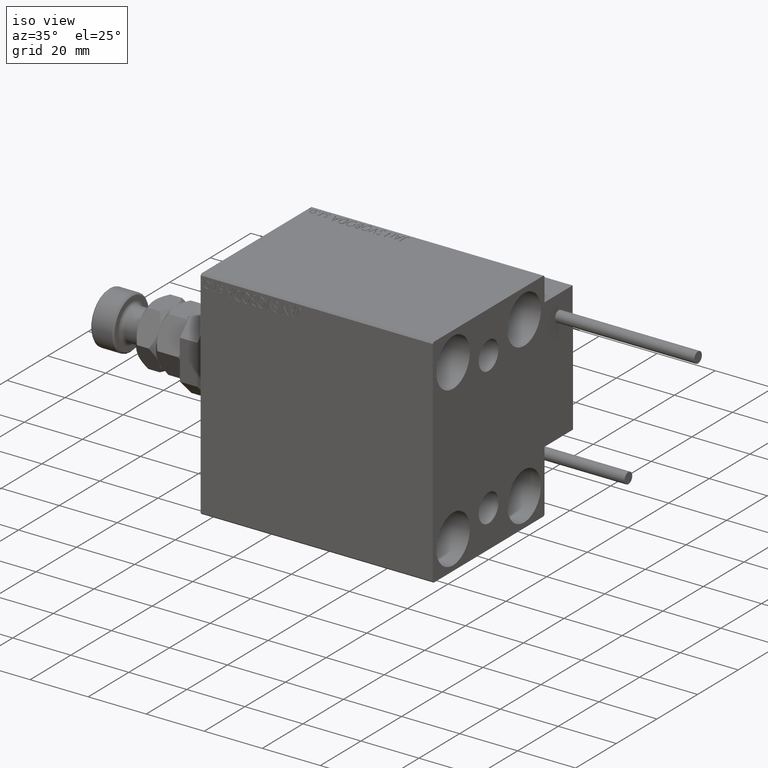
[diagram: clean part render]
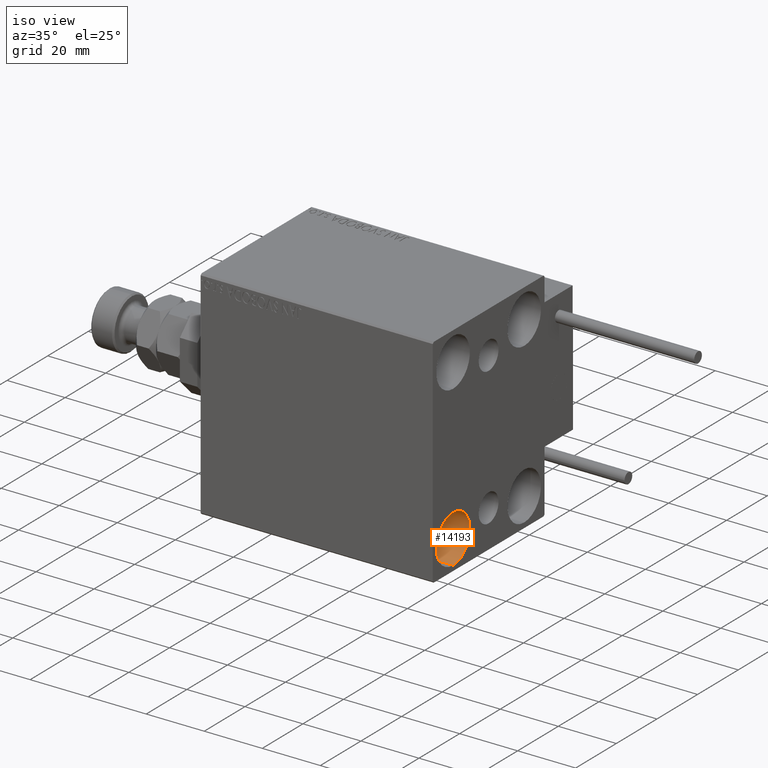
[diagram: same view with one face highlighted and labeled with its STEP entity id]
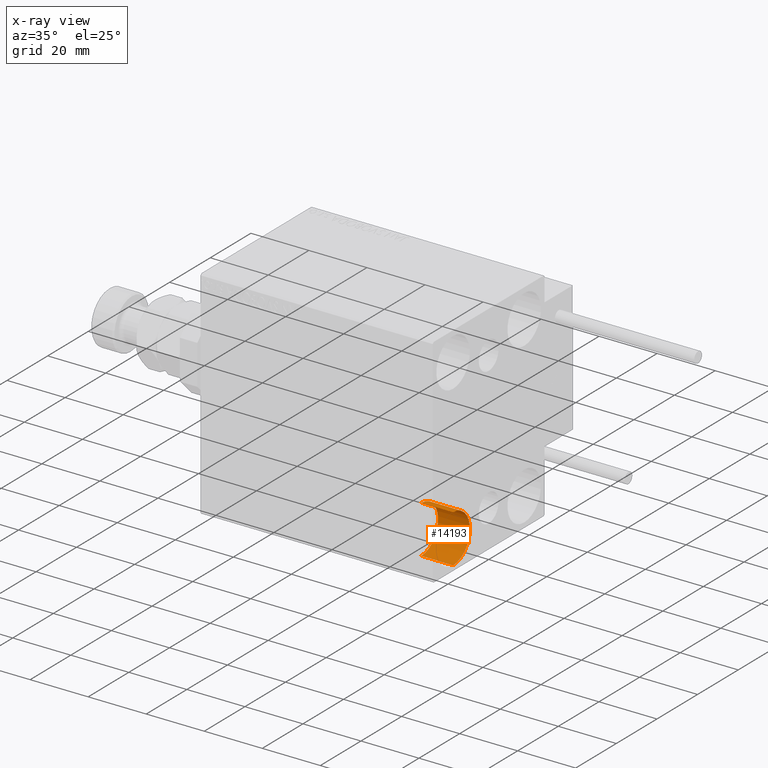
[diagram: x-ray of the same camera — body ghosted, the highlighted face saturated]
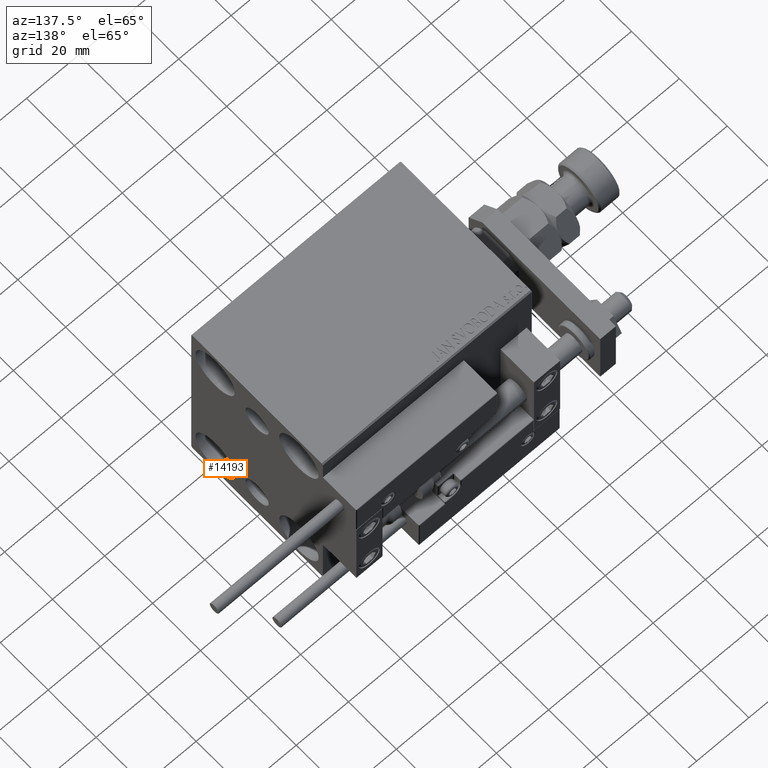
[diagram: same view with one face highlighted and labeled with its STEP entity id]
A machine part, iso view. The second image highlights one B-rep face of the part: STEP entity #14193.
The next image is the same camera in x-ray: the body ghosted, the highlighted face saturated — about 0% of this face is hidden behind the body in this view.
A second angle (auxiliary view) of the same face is appended — the face is thin or edge-on in the first view.
In plain terms, the highlighted cylindrical surface (edge-blend (fillet) strip) has radius 8.25 mm, axis along (1, 0, 0).
Its self-contained STEP definition (entity closure, byte-faithful):
#592 = CARTESIAN_POINT ( 'NONE',  ( 80.00000000000000000, -17.50000000000000355, -27.50000000000000355 ) ) ;
#1799 = EDGE_LOOP ( 'NONE', ( #34170, #9468, #27564, #50554 ) ) ;
#5193 = EDGE_CURVE ( 'NONE', #15900, #41398, #43093, .T. ) ;
#6173 = EDGE_CURVE ( 'NONE', #15900, #9648, #10696, .T. ) ;
#6234 = VECTOR ( 'NONE', #27704, 1000.000000000000000 ) ;
#6980 = DIRECTION ( 'NONE',  ( 1.000000000000000000, -0.000000000000000000, -0.000000000000000000 ) ) ;
#8930 = DIRECTION ( 'NONE',  ( 0.000000000000000000, 0.000000000000000000, 1.000000000000000000 ) ) ;
#9468 = ORIENTED_EDGE ( 'NONE', *, *, #6173, .T. ) ;
#9648 = VERTEX_POINT ( 'NONE', #50073 ) ;
#10696 = CIRCLE ( 'NONE', #20638, 8.250000000000000000 ) ;
#11035 = CYLINDRICAL_SURFACE ( 'NONE', #41651, 8.250000000000000000 ) ;
#11142 = VECTOR ( 'NONE', #6980, 1000.000000000000000 ) ;
#12052 = FACE_OUTER_BOUND ( 'NONE', #1799, .T. ) ;
#14193 = ADVANCED_FACE ( 'NONE', ( #12052 ), #11035, .F. ) ;
#15900 = VERTEX_POINT ( 'NONE', #45299 ) ;
#16142 = CARTESIAN_POINT ( 'NONE',  ( 80.00000000000000000, -17.50000000000000355, -19.25000000000000355 ) ) ;
#16481 = DIRECTION ( 'NONE',  ( -1.000000000000000000, -0.000000000000000000, -0.000000000000000000 ) ) ;
#19357 = DIRECTION ( 'NONE',  ( 1.000000000000000000, -0.000000000000000000, -0.000000000000000000 ) ) ;
#19804 = CARTESIAN_POINT ( 'NONE',  ( 80.00000000000000000, -17.50000000000000355, -35.75000000000000711 ) ) ;
#20398 = CARTESIAN_POINT ( 'NONE',  ( 69.00000000000000000, -17.50000000000000355, -27.50000000000000355 ) ) ;
#20638 = AXIS2_PLACEMENT_3D ( 'NONE', #20398, #16481, #36559 ) ;
#20962 = EDGE_CURVE ( 'NONE', #9648, #28754, #30427, .T. ) ;
#23004 = DIRECTION ( 'NONE',  ( 0.000000000000000000, 0.000000000000000000, -1.000000000000000000 ) ) ;
#27451 = CARTESIAN_POINT ( 'NONE',  ( 69.00000000000000000, -17.50000000000000355, -19.25000000000000355 ) ) ;
#27564 = ORIENTED_EDGE ( 'NONE', *, *, #20962, .T. ) ;
#27704 = DIRECTION ( 'NONE',  ( 1.000000000000000000, -0.000000000000000000, -0.000000000000000000 ) ) ;
#28754 = VERTEX_POINT ( 'NONE', #19804 ) ;
#30427 = LINE ( 'NONE', #42696, #11142 ) ;
#34170 = ORIENTED_EDGE ( 'NONE', *, *, #5193, .F. ) ;
#35506 = CARTESIAN_POINT ( 'NONE',  ( 69.00000000000000000, -17.50000000000000355, -27.50000000000000355 ) ) ;
#36559 = DIRECTION ( 'NONE',  ( 0.000000000000000000, 0.000000000000000000, 1.000000000000000000 ) ) ;
#41398 = VERTEX_POINT ( 'NONE', #16142 ) ;
#41651 = AXIS2_PLACEMENT_3D ( 'NONE', #35506, #19357, #23004 ) ;
#42696 = CARTESIAN_POINT ( 'NONE',  ( 69.00000000000000000, -17.50000000000000355, -35.75000000000000711 ) ) ;
#43093 = LINE ( 'NONE', #27451, #6234 ) ;
#43925 = CIRCLE ( 'NONE', #44791, 8.250000000000000000 ) ;
#44577 = EDGE_CURVE ( 'NONE', #41398, #28754, #43925, .T. ) ;
#44791 = AXIS2_PLACEMENT_3D ( 'NONE', #592, #48321, #8930 ) ;
#45299 = CARTESIAN_POINT ( 'NONE',  ( 69.00000000000000000, -17.50000000000000355, -19.25000000000000355 ) ) ;
#48321 = DIRECTION ( 'NONE',  ( -1.000000000000000000, -0.000000000000000000, -0.000000000000000000 ) ) ;
#50073 = CARTESIAN_POINT ( 'NONE',  ( 69.00000000000000000, -17.50000000000000355, -35.75000000000000711 ) ) ;
#50554 = ORIENTED_EDGE ( 'NONE', *, *, #44577, .F. ) ;